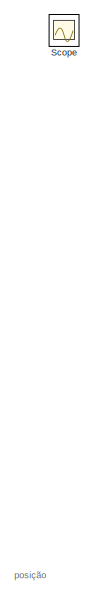
[diagram: root canvas - part 1/3, top center region]
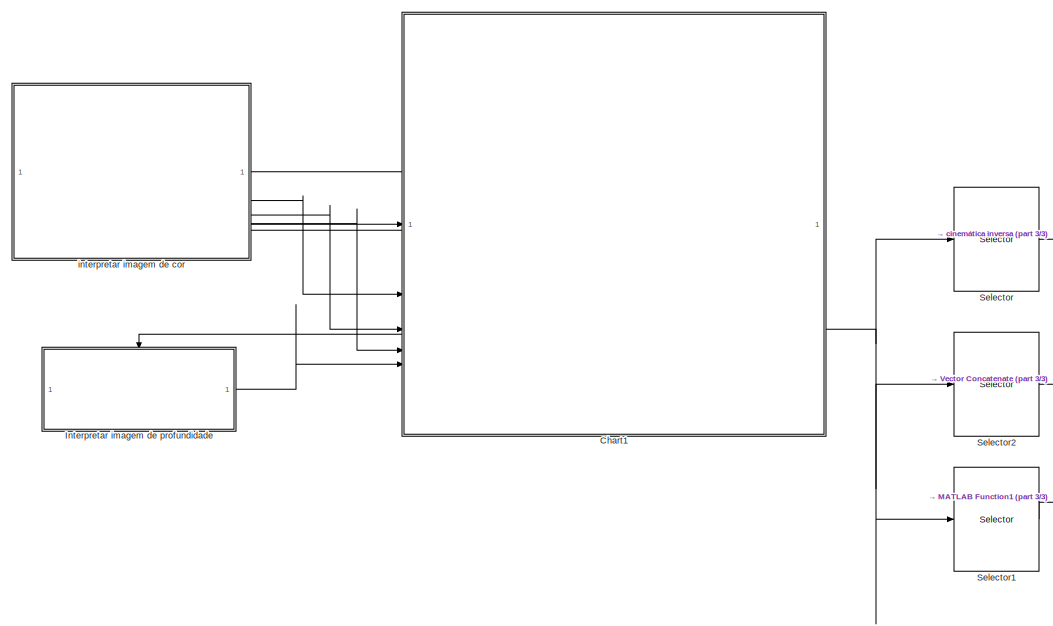
[diagram: root canvas - part 2/3, bottom left region]
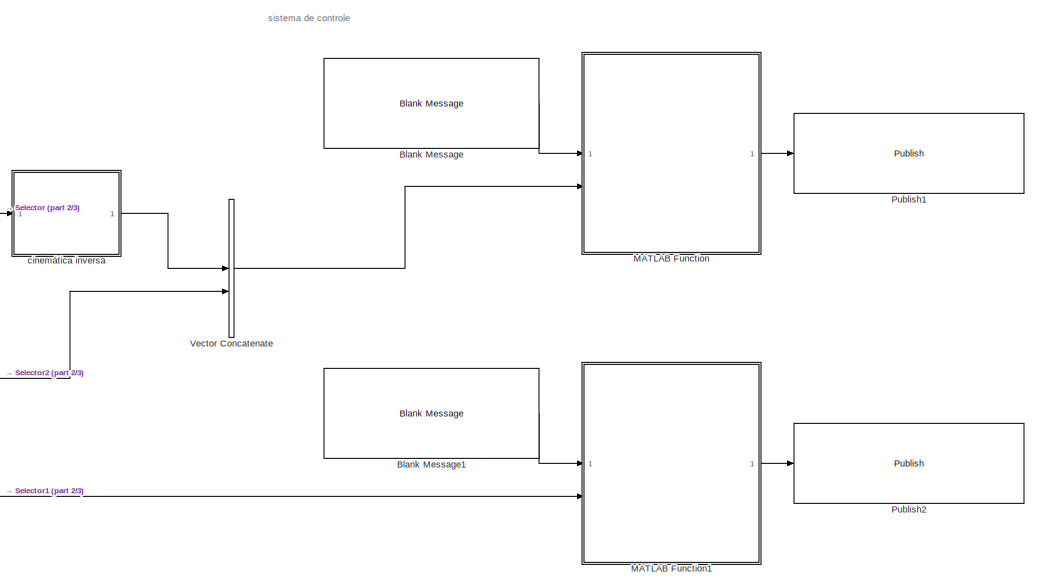
[diagram: root canvas - part 3/3, bottom right region]
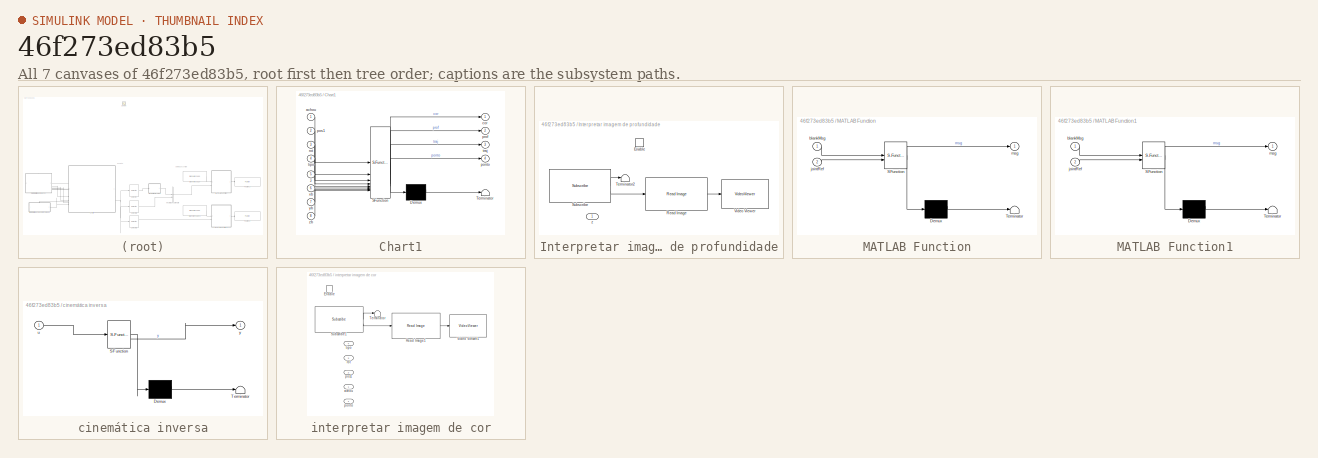
[diagram: thumbnail index - all 7 canvases of the model, root first then tree order]
MODEL slx_46f273ed83b5
KIND model
CONFIG AbsTol = auto
CONFIG EnableMultiTasking = off
CONFIG FixedStep = auto
CONFIG MaxStep = auto
CONFIG MinStep = auto
CONFIG RelTol = 1e-3
CONFIG SampleTimeConstraint = Unconstrained
CONFIG SolverName = FixedStepAuto
CONFIG StartTime = 0.0
CONFIG StopTime = 10.0
WORKSPACE source: mxarray member
WORKSPACE SL_ROS_VariableLengthArrays_MaxSizes: object (value not decoded)
BLOCK [Reference] Blank Message  REF=robotlib/Blank Message
  SourceBlock = robotlib/Blank Message
  SourceType = ROS Blank Message
BLOCK [Reference] Blank Message1  REF=robotlib/Blank Message
  SourceBlock = robotlib/Blank Message
  SourceType = ROS Blank Message
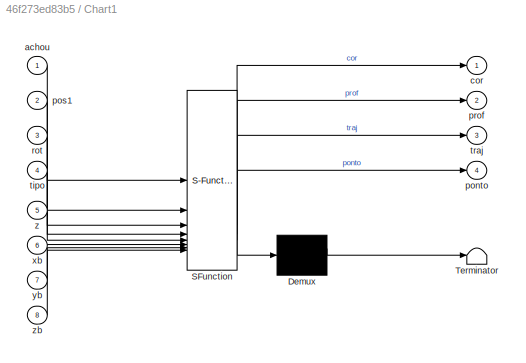
BLOCK [SubSystem] Chart1
  ErrorFcn = Stateflow.Translate.translate
  PermitHierarchicalResolution = ExplicitOnly
  PortSchema = {"entries":[{"content":{"sides":[{"content":{"connectorIds":["Out1","Out4","In1","In2","In3","In4","Out2","In5","In6","In7","In8"]},"type":"ConnectorPlacement.EquallySpacedRectSide","uuid":"2ce0c57c-c8af-493e-b7a7-7a5f5fd3398e"},{"content":{"connectorIds":["Out3"],"side":"RIGHT"},"type":"ConnectorPlacement.EquallySpacedRectSide","uuid":"3b5d3580-bb24-4e36-a1dd-ff8ebdeb0e78"},{"content":{"side":"TO...<+285ch>
  SFBlockType = Chart
  TreatAsAtomicUnit = on
BLOCK [Demux] Chart1/ Demux 
  Outputs = 1
BLOCK [S-Function] Chart1/ SFunction 
  EnableBusSupport = off
  FunctionName = sf_sfun
  PortCounts = [8 5]
  SFcnIsStateOwnerBlock = off
  SFunctionDeploymentMode = off
  Tag = Stateflow S-Function 3
BLOCK [Terminator] Chart1/ Terminator 
BLOCK [Inport] Chart1/achou
BLOCK [Outport] Chart1/cor
BLOCK [Outport] Chart1/ponto
  Port = 4
BLOCK [Inport] Chart1/pos1
  Port = 2
BLOCK [Outport] Chart1/prof
  Port = 2
BLOCK [Inport] Chart1/rot
  Port = 3
BLOCK [Inport] Chart1/tipo
  Port = 4
BLOCK [Outport] Chart1/traj
  Port = 3
BLOCK [Inport] Chart1/xb
  Port = 6
BLOCK [Inport] Chart1/yb
  Port = 7
BLOCK [Inport] Chart1/z
  Port = 5
BLOCK [Inport] Chart1/zb
  Port = 8
BLOCK [SubSystem] Interpretar imagem de profundidade
BLOCK [EnablePort] Interpretar imagem de profundidade/Enable
BLOCK [Reference] Interpretar imagem de profundidade/Read Image  REF=robotlib/Read Image
  SourceBlock = robotlib/Read Image
  SourceType = ros.slros.internal.block.ReadImage
BLOCK [Reference] Interpretar imagem de profundidade/Subscribe  REF=robotlib/Subscribe
  SourceBlock = robotlib/Subscribe
  SourceType = ROS Subscribe
BLOCK [Terminator] Interpretar imagem de profundidade/Terminator2
BLOCK [VideoViewer] Interpretar imagem de profundidade/Video Viewer
  FigPos = [795 440 418 304]
  ScopeSpecificationString = vipscopes.VideoViewerScopeCfg('CurrentConfiguration', extmgr.ConfigurationSet(extmgr.Configuration('Core','General UI',true),extmgr.Configuration('Core','Source UI',true),extmgr.Configuration('Sources','WiredSimulink',true),extmgr.Configuration('Visuals','Video',true),extmgr.Configuration('Tools','Image Navigation Tools',true),extmgr.Configuration('Tools','Image Tool',true),extmgr.Configuration('T...<+75ch>
BLOCK [Outport] Interpretar imagem de profundidade/z
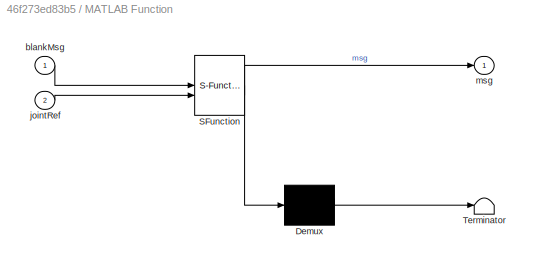
BLOCK [SubSystem] MATLAB Function
  ErrorFcn = Stateflow.Translate.translate
  PermitHierarchicalResolution = ExplicitOnly
  SFBlockType = MATLAB Function
  TreatAsAtomicUnit = on
BLOCK [Demux] MATLAB Function/ Demux 
  Outputs = 1
BLOCK [S-Function] MATLAB Function/ SFunction 
  EnableBusSupport = on
  FunctionName = sf_sfun
  PortCounts = [2 2]
  SFcnIsStateOwnerBlock = off
  SFunctionDeploymentMode = off
  Tag = Stateflow S-Function 2
BLOCK [Terminator] MATLAB Function/ Terminator 
BLOCK [Inport] MATLAB Function/blankMsg
BLOCK [Inport] MATLAB Function/jointRef
  Port = 2
BLOCK [Outport] MATLAB Function/msg
BLOCK [SubSystem] MATLAB Function1
  ErrorFcn = Stateflow.Translate.translate
  PermitHierarchicalResolution = ExplicitOnly
  SFBlockType = MATLAB Function
  TreatAsAtomicUnit = on
BLOCK [Demux] MATLAB Function1/ Demux 
  Outputs = 1
BLOCK [S-Function] MATLAB Function1/ SFunction 
  EnableBusSupport = on
  FunctionName = sf_sfun
  PortCounts = [2 2]
  SFcnIsStateOwnerBlock = off
  SFunctionDeploymentMode = off
  Tag = Stateflow S-Function 1
BLOCK [Terminator] MATLAB Function1/ Terminator 
BLOCK [Inport] MATLAB Function1/blankMsg
BLOCK [Inport] MATLAB Function1/jointRef
  Port = 2
BLOCK [Outport] MATLAB Function1/msg
BLOCK [Reference] Publish1  REF=robotlib/Publish
  SourceBlock = robotlib/Publish
  SourceType = ROS Publish
BLOCK [Reference] Publish2  REF=robotlib/Publish
  SourceBlock = robotlib/Publish
  SourceType = ROS Publish
BLOCK [Scope] Scope
  Floating = off
  IOType = viewer
  NumInputPorts = 1
  ScopeSpecificationString = Simulink.scopes.TimeScopeBlockCfg('CurrentConfiguration', extmgr.ConfigurationSet(extmgr.Configuration('Core','General UI',true),extmgr.Configuration('Core','Source UI',true),extmgr.Configuration('Sources','WiredSimulink',true),extmgr.Configuration('Visuals','Time Domain',true,'SerializedDisplays',{struct('MinYLimReal','-10.00000','MaxYLimReal','10.00000','YLabelReal','','MinYLimMag','0.00000','Ma...<+1415ch>
BLOCK [Selector] Selector
  IndexOptions = Index vector (dialog)
  Indices = [1 2 3]
  InputPortWidth = 5
  OutputSizes = 1
BLOCK [Selector] Selector1
  IndexOptions = Index vector (dialog)
  Indices = [5]
  InputPortWidth = 5
  OutputSizes = 1
BLOCK [Selector] Selector2
  IndexOptions = Index vector (dialog)
  Indices = [4]
  InputPortWidth = 5
  OutputSizes = 1
BLOCK [Concatenate] Vector Concatenate
BLOCK [SubSystem] cinemática inversa
  ErrorFcn = Stateflow.Translate.translate
  PermitHierarchicalResolution = ExplicitOnly
  SFBlockType = MATLAB Function
  TreatAsAtomicUnit = on
BLOCK [Demux] cinemática inversa/ Demux 
  Outputs = 1
BLOCK [S-Function] cinemática inversa/ SFunction 
  EnableBusSupport = off
  FunctionName = sf_sfun
  PortCounts = [1 2]
  SFcnIsStateOwnerBlock = off
  SFunctionDeploymentMode = off
  Tag = Stateflow S-Function 5
BLOCK [Terminator] cinemática inversa/ Terminator 
BLOCK [Inport] cinemática inversa/u
BLOCK [Outport] cinemática inversa/y
BLOCK [SubSystem] interpretar imagem de cor
BLOCK [EnablePort] interpretar imagem de cor/Enable
BLOCK [Reference] interpretar imagem de cor/Read Image1  REF=robotlib/Read Image
  SourceBlock = robotlib/Read Image
  SourceType = ros.slros.internal.block.ReadImage
BLOCK [Reference] interpretar imagem de cor/Subscribe1  REF=robotlib/Subscribe
  SourceBlock = robotlib/Subscribe
  SourceType = ROS Subscribe
BLOCK [Terminator] interpretar imagem de cor/Terminator
BLOCK [VideoViewer] interpretar imagem de cor/Video Viewer1
  FigPos = [724 558 418 304]
  ScopeSpecificationString = vipscopes.VideoViewerScopeCfg('CurrentConfiguration', extmgr.ConfigurationSet(extmgr.Configuration('Core','General UI',true),extmgr.Configuration('Core','Source UI',true),extmgr.Configuration('Sources','WiredSimulink',true),extmgr.Configuration('Visuals','Video',true),extmgr.Configuration('Tools','Image Navigation Tools',true),extmgr.Configuration('Tools','Image Tool',true),extmgr.Configuration('T...<+75ch>
BLOCK [Outport] interpretar imagem de cor/achou
BLOCK [Inport] interpretar imagem de cor/ponto
BLOCK [Outport] interpretar imagem de cor/pos1
  Port = 2
BLOCK [Outport] interpretar imagem de cor/rot
  Port = 3
BLOCK [Outport] interpretar imagem de cor/tipo
  Port = 4
ANNOTATION (root): posição
ANNOTATION (root): sistema de controle
LINE Blank Message1:1 -> MATLAB Function1:1
LINE Blank Message:1 -> MATLAB Function:1
LINE Chart1:1 -> interpretar imagem de cor:enable
LINE Chart1:2 -> Interpretar imagem de profundidade:enable
NET Chart1:3 -> Selector1:1, Selector2:1, Selector:1
LINE Chart1:4 -> interpretar imagem de cor:1
LINE Interpretar imagem de profundidade/Read Image:1 -> Interpretar imagem de profundidade/Video Viewer:1
LINE Interpretar imagem de profundidade/Subscribe:1 -> Interpretar imagem de profundidade/Terminator2:1
LINE Interpretar imagem de profundidade/Subscribe:2 -> Interpretar imagem de profundidade/Read Image:1
LINE Interpretar imagem de profundidade:1 -> Chart1:5
LINE MATLAB Function1:1 -> Publish2:1
LINE MATLAB Function:1 -> Publish1:1
LINE Selector1:1 -> MATLAB Function1:2
LINE Selector2:1 -> Vector Concatenate:2
LINE Selector:1 -> cinemática inversa:1
LINE Vector Concatenate:1 -> MATLAB Function:2
LINE cinemática inversa:1 -> Vector Concatenate:1
LINE interpretar imagem de cor/Read Image1:1 -> interpretar imagem de cor/Video Viewer1:1
LINE interpretar imagem de cor/Subscribe1:1 -> interpretar imagem de cor/Terminator:1
LINE interpretar imagem de cor/Subscribe1:2 -> interpretar imagem de cor/Read Image1:1
LINE interpretar imagem de cor:1 -> Chart1:1
LINE interpretar imagem de cor:2 -> Chart1:2
LINE interpretar imagem de cor:3 -> Chart1:3
LINE interpretar imagem de cor:4 -> Chart1:4
note: NET lines group one-source signal fan-out (src -> all destinations, sorted); 1:1 wires keep LINE
CHART MATLAB Function1 states=1 transitions=1
  STATE_LABEL 'eML_blk_kernel()'
  STATE_LABEL "SCRIPT:\nfunction msg = packageTrajectory(blankMsg, jointRef)\n\n    msg = blankMsg;\n\n    \n    numJoints = uint32(1);\n    msg.JointNames_SL_Info.CurrentLength = numJoints;\n\n  \n    name = 'robotiq_85_left_knuckle_joint';\n    msg.JointNames(1).Data(1:length(name)) = uint8(name);\n    msg.JointNames(1).Data_SL_Info.CurrentLength = uint32(length(name));\n\n    msg.Points_SL_Info.CurrentLength = uint32(1);\n\n...<+833ch>"
CHART MATLAB Function states=1 transitions=1
  STATE_LABEL 'eML_blk_kernel()'
  STATE_LABEL "SCRIPT:\nfunction msg = packageTrajectory(blankMsg, jointRef)\n\n    msg = blankMsg;\n\nmsg.JointNames_SL_Info.CurrentLength = uint32(6);\n\nmsg.JointNames(1).Data_SL_Info.CurrentLength = uint32(18);\nmsg.JointNames(1).Data(1:18) = uint8('shoulder_pan_joint')';\nmsg.JointNames(2).Data_SL_Info.CurrentLength = uint32(19);\nmsg.JointNames(2).Data(1:19) = uint8('shoulder_lift_joint')';\nmsg.JointNames(3).Data_SL...<+1341ch>"
CHART Chart1 states=21 transitions=31
  STATE_LABEL 'lixeira_verde\n\n traj(1) = xlv;\n traj(2) = ylv;\n traj(3) = zp;\n traj(4) =0;\n traj(5) =1;\nexit:traj;'
  STATE_LABEL 'soltar\n\n traj(1) = xlv;\n traj(2) = ylv;\n traj(3) = zp;\n traj(4) =0;\n traj(5) =0;\nexit:traj;'
  STATE_LABEL 'Posicionar\n\nentry: pos1(1:2);\nentry: rot;\n traj(1:5);\n traj(1) = pos1(1);\n traj(2) = pos1(2);\n traj(3) = zp;\n traj(4) =rot;\n traj(5) =0;\nexit:traj;'
  STATE_LABEL 'Profundidade\n\nexit:prof = 1\nentry:z;\ntraj(1) = pos1(1);\ntraj(2) = pos1(2);\ntraj(3) = z;\ntraj(4) =rot;\ntraj(5) =0;\nexit:traj;'
  STATE_LABEL 'Pegar\n\nexit:prof = 1\nentry:z;\ntraj(1) = pos1(1);\ntraj(2) = pos1(2);\ntraj(3) = z;\ntraj(4) =rot;\ntraj(5) =1;\nexit:traj;'
  STATE_LABEL 'Posicionar1\n\n traj(1) = pos1(1);\n traj(2) = pos1(2);\n traj(3) = zp;\n traj(4) =rot;\n traj(5) =1;\nexit:traj;\nentry:tipo;'
  STATE_LABEL 'PP1\n\nexit:cor = 1;\nexit:ponto = [0,0,0];\nexit:traj = ponto\nentry:achou;'
  STATE_LABEL 'lixeira_verde1\n\n traj(1) = xla;\n traj(2) = yla;\n traj(3) = zp;\n traj(4) =0;\n traj(5) =1;\nexit:traj;'
  STATE_LABEL 'soltar1\n\n traj(1) = xla;\n traj(2) = yla;\n traj(3) = zp;\n traj(4) =0;\n traj(5) =0;\nexit:traj;'
  STATE_LABEL 'PP2\n\nexit:cor = 1;\nexit:ponto = [0,0,0];\nexit:traj = ponto\nentry:achou;'
  STATE_LABEL 'balanca\n\n traj(1) = xb;\n traj(2) = yb;\n traj(3) = zp;\n traj(4) =rot;\n traj(5) =1;\nexit:traj;\nentry:tipo;'
  STATE_LABEL 'balanca1\n\n traj(1) = xb;\n traj(2) = yb;\n traj(3) = zb;\n traj(4) =rot;\n traj(5) =1;\nexit:traj;\nentry:tipo;'
  STATE_LABEL 'balanca2\n\n traj(1) = xb;\n traj(2) = yb;\n traj(3) = zb;\n traj(4) =rot;\n traj(5) =0;\nexit:traj;\nentry:tipo;'
  STATE_LABEL 'balanca3\n\n traj(1) = xb;\n traj(2) = yb;\n traj(3) = zp;\n traj(4) =rot;\n traj(5) =0;\nexit:traj;\nentry:tipo;'
  STATE_LABEL 'balanca4\n\n traj(1) = xb;\n traj(2) = yb;\n traj(3) = zb;\n traj(4) =rot;\n traj(5) =0;\nexit:traj;\nentry:tipo;'
  STATE_LABEL 'balanca5\n\n traj(1) = xb;\n traj(2) = yb;\n traj(3) = zb;\n traj(4) =rot;\n traj(5) =1;\nexit:traj;\nentry:tipo;'
  STATE_LABEL 'balanca6\n\n traj(1) = xb;\n traj(2) = yb;\n traj(3) = zp;\n traj(4) =rot;\n traj(5) =1;\nexit:traj;\nentry:tipo;'
  STATE_LABEL 'PP3\n\nexit:cor = 1;\nexit:ponto = [0,0,0];\nexit:traj = ponto\nentry:achou;'
  STATE_LABEL 'PP4\n\nexit:cor = 1;\nexit:ponto = [0,0,0];\nexit:traj = ponto\nentry:achou;'
  STATE_LABEL 'PP5\n\nexit:cor = 1;\nexit:ponto = [0,0,0];\nexit:traj = ponto\nentry:achou;'
  STATE_LABEL 'PP6\n\nexit:cor = 1;\nexit:ponto = [0,0,0];\nexit:traj = ponto\nentry:achou;'
CHART cinemática inversa states=1 transitions=1
  STATE_LABEL 'eML_blk_kernel()'
  STATE_LABEL 'SCRIPT:\nfunction y = fcn(u)\n\ny = u;\n'
CHART  states=0 transitions=0
CHART  states=0 transitions=0
CHART  states=0 transitions=0
CHART  states=0 transitions=0
